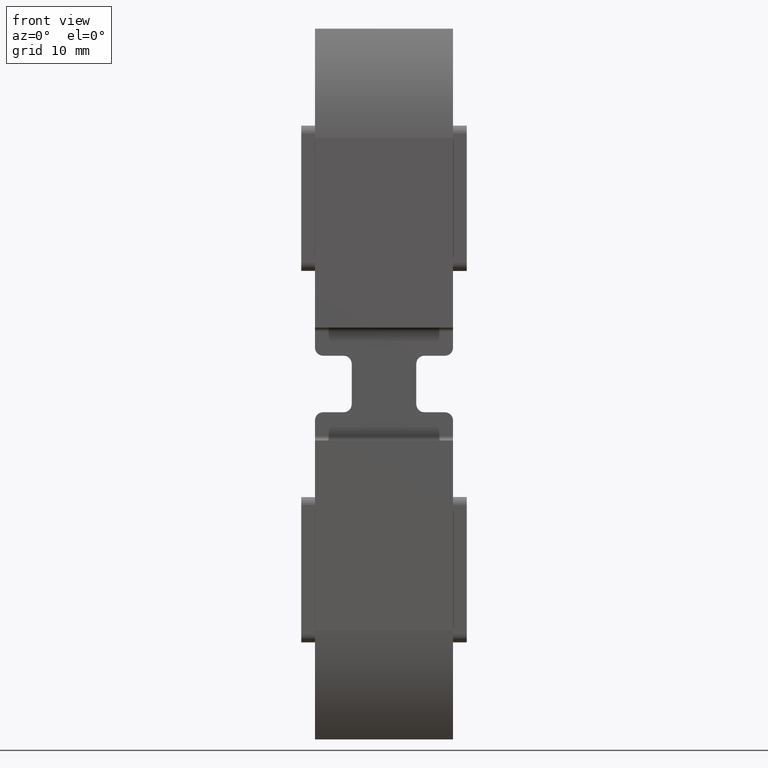
[diagram: clean part render]
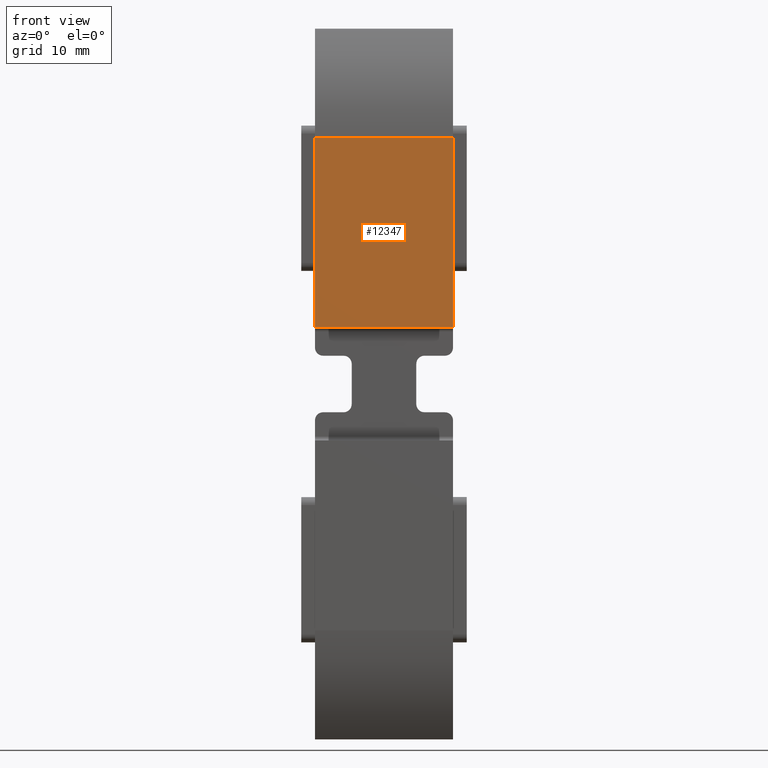
[diagram: same view with one face highlighted and labeled with its STEP entity id]
A machine part, front view. The second image highlights one B-rep face of the part: STEP entity #12347.
In plain terms, the highlighted planar face has unit normal (0, 1, -0).
Its self-contained STEP definition (entity closure, byte-faithful):
#11 = ORIENTED_EDGE ( 'NONE', *, *, #2707, .T. ) ;
#65 = LINE ( 'NONE', #11109, #9892 ) ;
#98 = CARTESIAN_POINT ( 'NONE',  ( 8.550000000000000700, 1.247851192183392400E-014, 30.50037594516294700 ) ) ;
#325 = DIRECTION ( 'NONE',  ( 0.0000000000000000000, 4.091264954985871500E-016, 1.000000000000000000 ) ) ;
#1323 = EDGE_LOOP ( 'NONE', ( #12227, #9477, #11, #4214 ) ) ;
#1398 = DIRECTION ( 'NONE',  ( -1.000000000000000000, 0.0000000000000000000, 0.0000000000000000000 ) ) ;
#1669 = VECTOR ( 'NONE', #325, 1000.000000000000000 ) ;
#1714 = PLANE ( 'NONE',  #4614 ) ;
#1901 = VERTEX_POINT ( 'NONE', #10280 ) ;
#2151 = CARTESIAN_POINT ( 'NONE',  ( -8.550000000000000700, 2.863885468490111300E-015, 7.000000000000002700 ) ) ;
#2704 = CARTESIAN_POINT ( 'NONE',  ( 8.550000000000000700, 1.247851192183392400E-014, 30.50037594516294700 ) ) ;
#2707 = EDGE_CURVE ( 'NONE', #11100, #11858, #65, .T. ) ;
#3939 = EDGE_CURVE ( 'NONE', #11858, #6642, #10919, .T. ) ;
#3995 = EDGE_CURVE ( 'NONE', #1901, #6642, #4949, .T. ) ;
#4214 = ORIENTED_EDGE ( 'NONE', *, *, #3939, .T. ) ;
#4423 = EDGE_CURVE ( 'NONE', #11100, #1901, #8975, .T. ) ;
#4614 = AXIS2_PLACEMENT_3D ( 'NONE', #8285, #6582, #11293 ) ;
#4899 = CARTESIAN_POINT ( 'NONE',  ( 8.550000000000000700, 2.863885468490111300E-015, 7.000000000000002700 ) ) ;
#4949 = LINE ( 'NONE', #2151, #1669 ) ;
#5171 = CARTESIAN_POINT ( 'NONE',  ( -8.550000000000000700, 1.247851192183392400E-014, 30.50037594516294700 ) ) ;
#5173 = FACE_OUTER_BOUND ( 'NONE', #1323, .T. ) ;
#5484 = DIRECTION ( 'NONE',  ( 0.0000000000000000000, 4.091264954985871500E-016, 1.000000000000000000 ) ) ;
#5818 = DIRECTION ( 'NONE',  ( -1.000000000000000000, 0.0000000000000000000, 0.0000000000000000000 ) ) ;
#6582 = DIRECTION ( 'NONE',  ( 0.0000000000000000000, 1.000000000000000000, -4.091264954985871500E-016 ) ) ;
#6642 = VERTEX_POINT ( 'NONE', #5171 ) ;
#8285 = CARTESIAN_POINT ( 'NONE',  ( 8.550000000000000700, 2.863885468490111300E-015, 7.000000000000002700 ) ) ;
#8366 = VECTOR ( 'NONE', #1398, 1000.000000000000000 ) ;
#8975 = LINE ( 'NONE', #9906, #8366 ) ;
#9477 = ORIENTED_EDGE ( 'NONE', *, *, #4423, .F. ) ;
#9892 = VECTOR ( 'NONE', #5484, 1000.000000000000000 ) ;
#9906 = CARTESIAN_POINT ( 'NONE',  ( 8.550000000000000700, 2.863885468490111300E-015, 7.000000000000002700 ) ) ;
#10280 = CARTESIAN_POINT ( 'NONE',  ( -8.550000000000000700, 2.863885468490111300E-015, 7.000000000000002700 ) ) ;
#10919 = LINE ( 'NONE', #98, #12275 ) ;
#11100 = VERTEX_POINT ( 'NONE', #4899 ) ;
#11109 = CARTESIAN_POINT ( 'NONE',  ( 8.550000000000000700, 2.863885468490111300E-015, 7.000000000000002700 ) ) ;
#11293 = DIRECTION ( 'NONE',  ( 0.0000000000000000000, -4.091264954985871500E-016, -1.000000000000000000 ) ) ;
#11858 = VERTEX_POINT ( 'NONE', #2704 ) ;
#12227 = ORIENTED_EDGE ( 'NONE', *, *, #3995, .F. ) ;
#12275 = VECTOR ( 'NONE', #5818, 1000.000000000000000 ) ;
#12347 = ADVANCED_FACE ( 'NONE', ( #5173 ), #1714, .F. ) ;